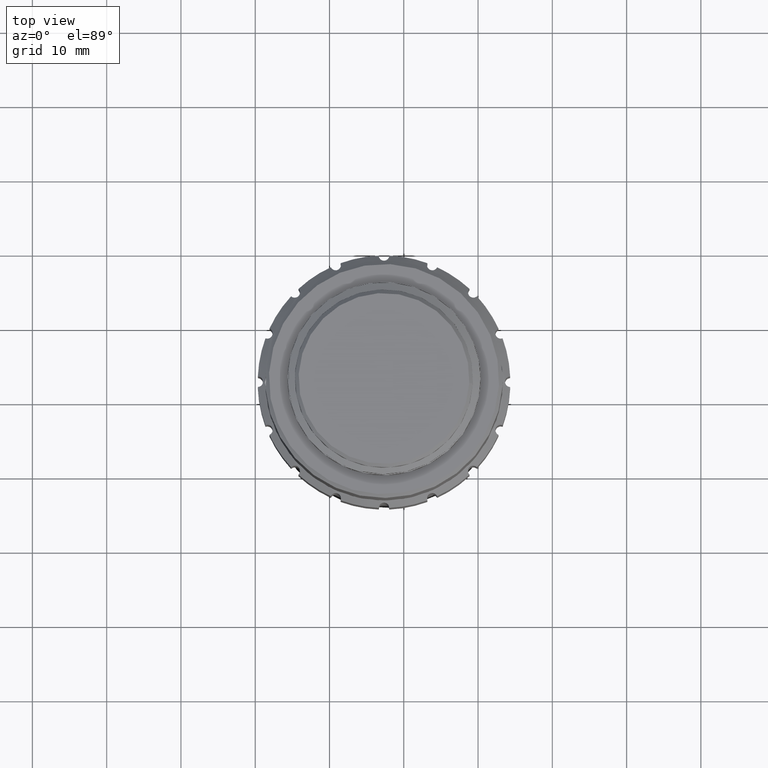
[diagram: clean part render]
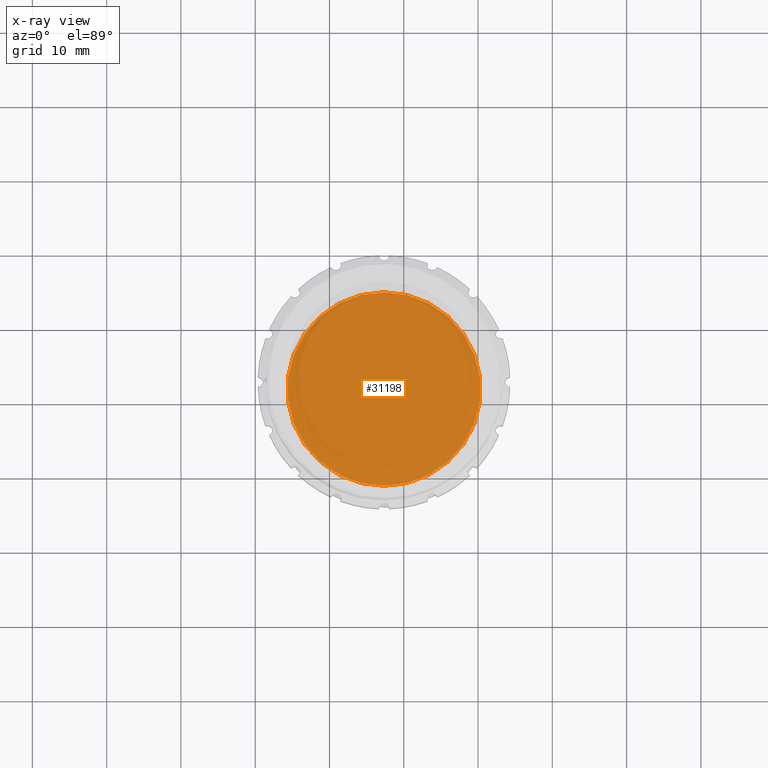
[diagram: x-ray — body ghosted, one internal face saturated and labeled with its STEP entity id]
A machine part, top view, then the same camera in x-ray: the body is ghosted and one INTERNAL B-rep face — a face not visible from any outside direction — is saturated and labeled: STEP entity #31198.
In plain terms, the highlighted planar face has unit normal (0, 0, -1).
Its self-contained STEP definition (entity closure, byte-faithful):
#558 = AXIS2_PLACEMENT_3D ( 'NONE', #1090, #20347, #15312 ) ;
#1090 = CARTESIAN_POINT ( 'NONE',  ( -122.6630341068842540, 22.01530283243863195, -51.01891477214511639 ) ) ;
#6534 = PLANE ( 'NONE',  #21453 ) ;
#13414 = CARTESIAN_POINT ( 'NONE',  ( -122.6630341068842540, 35.03833184500979314, -51.01891477214511639 ) ) ;
#13484 = CARTESIAN_POINT ( 'NONE',  ( -153.8725490382067562, 78.32088365729966029, -51.01891477214511639 ) ) ;
#15312 = DIRECTION ( 'NONE',  ( 0.000000000000000000, 1.000000000000000000, 0.000000000000000000 ) ) ;
#20347 = DIRECTION ( 'NONE',  ( -0.000000000000000000, -1.313240075463129887E-16, 1.000000000000000000 ) ) ;
#20804 = EDGE_LOOP ( 'NONE', ( #24149 ) ) ;
#21453 = AXIS2_PLACEMENT_3D ( 'NONE', #13484, #31008, #23414 ) ;
#23414 = DIRECTION ( 'NONE',  ( 0.000000000000000000, 1.000000000000000000, 1.313240075463129887E-16 ) ) ;
#24149 = ORIENTED_EDGE ( 'NONE', *, *, #28741, .T. ) ;
#25269 = CIRCLE ( 'NONE', #558, 13.02302901257115764 ) ;
#25788 = FACE_OUTER_BOUND ( 'NONE', #20804, .T. ) ;
#27942 = VERTEX_POINT ( 'NONE', #13414 ) ;
#28741 = EDGE_CURVE ( 'NONE', #27942, #27942, #25269, .T. ) ;
#31008 = DIRECTION ( 'NONE',  ( 0.000000000000000000, 1.313240075463129887E-16, -1.000000000000000000 ) ) ;
#31198 = ADVANCED_FACE ( 'NONE', ( #25788 ), #6534, .F. ) ;